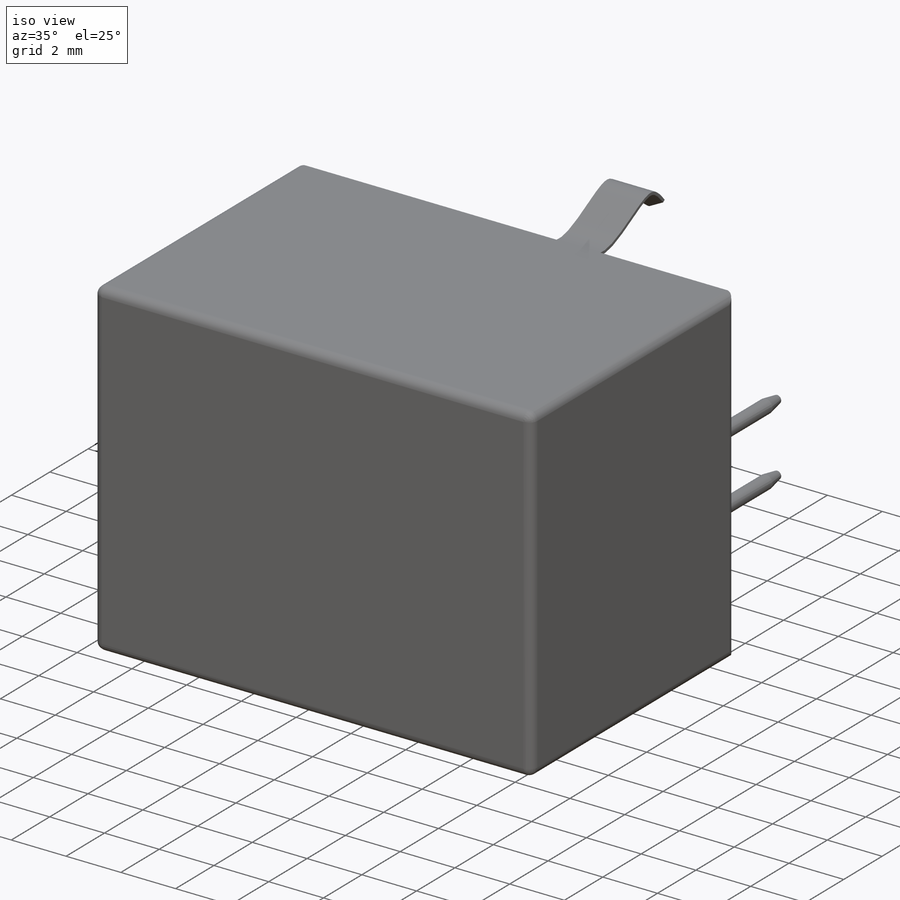
[diagram: iso view]
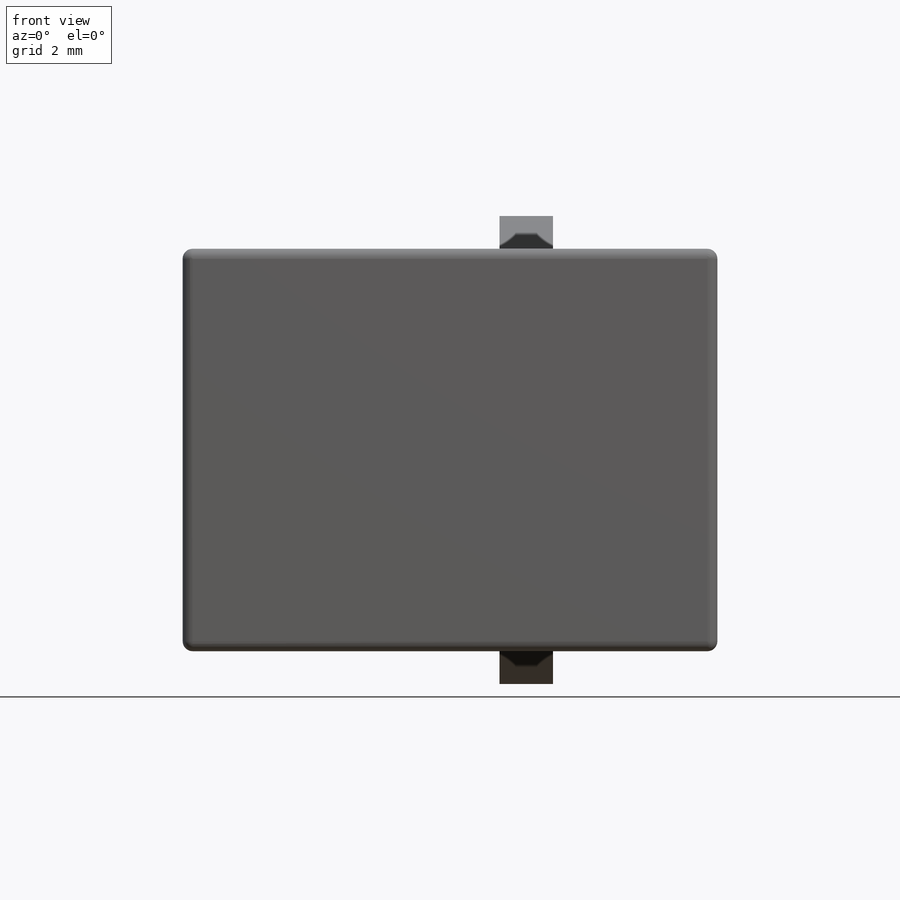
[diagram: front view]
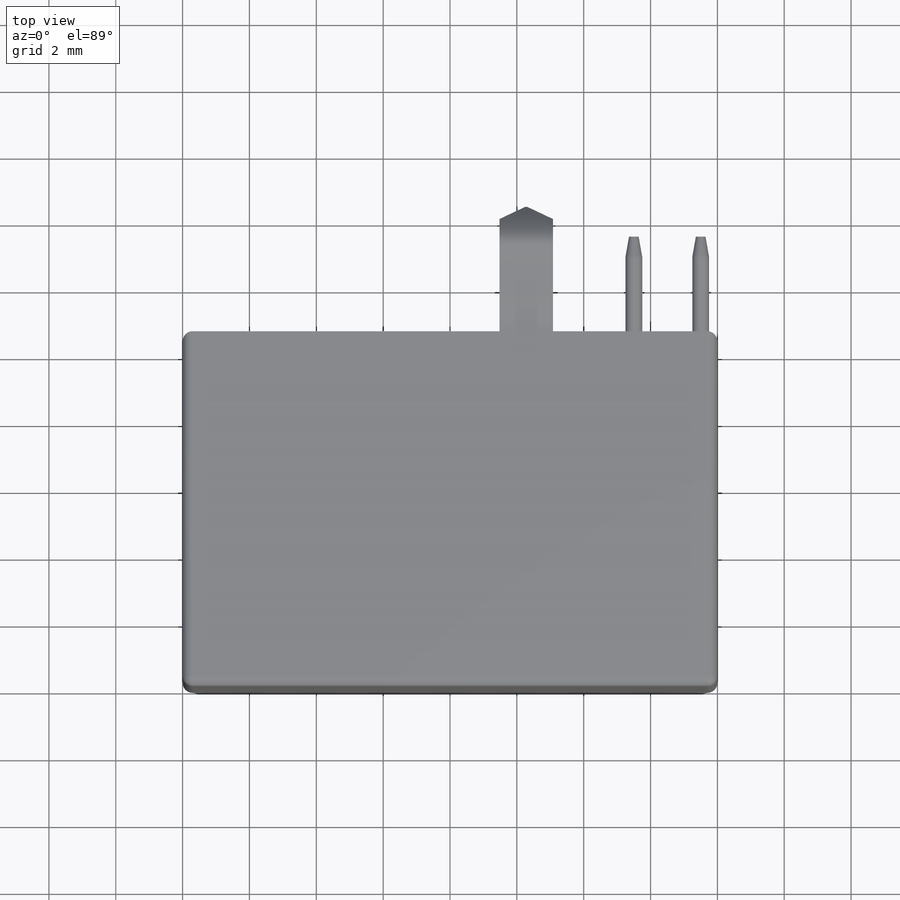
[diagram: top view]
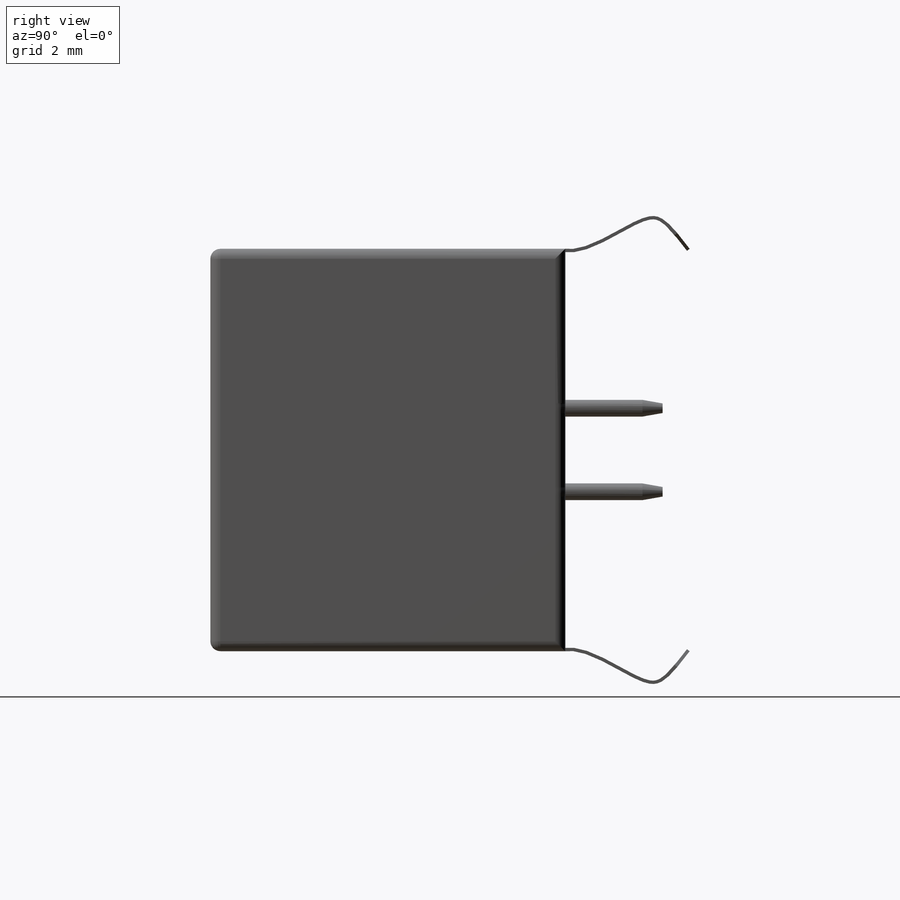
[diagram: right view]
SOLIDWORKS PART (.sldprt)
format: sldprt  version: not decoded by parser v0  size: 361,984 bytes
history: native  units: mm
features: sketch x7, extrude x3, chamfer x3, cut_extrude x2, plane x2, mirror x2, material x1, fillet x1 (+13 scaffold rows collapsed)
feature tree (34):
  scaffold x13  (default folders/planes/origin — collapsed)
  material  "Material <not specified>"
  sketch  "Sketch1"  dims[D1=12.04mm D2=10.62mm]
  extrude  "Boss-Extrude1"  Depth=16mm
  sketch  "Sketch2"  dims[c1.D1=7.78mm c1.D2=8.45mm c1.D3=1.5mm c1.D4=7.78mm c2.D4=45.0deg c2.D5=3.0mm]
  cut_extrude  "Cut-Extrude1"  Depth=9mm
  sketch  "Sketch3"  dims[D1=5.5mm D2=3.0mm D3=2.3mm]
  extrude  "Boss-Extrude2"  Depth=9mm
  plane  "Plane1"  Offset=6.02mm
  sketch  "Sketch4"  dims[c1.D1=4.0mm c1.D2=4.0mm c2.D1=4.0mm c2.D5=0.1mm c2.D6=10.0mm c2.D7=5.0mm]
  sketch  "Sketch5"  dims[D1=2.0mm]
  cut_extrude  "Cut-Extrude2"  Depth=9mm
  sketch  "Sketch6"  dims[D1=0.5mm D2=2.0mm D3=13.5mm D4=1.25mm]
  extrude  "Boss-Extrude4"  Depth=2.91mm
  mirror  "Mirror1"
  chamfer  "Chamfer1"  Distance=0.6mm Angle=10deg
  plane  "Plane2"  Offset=10.28mm
  sketch  "Sketch7"  dims[c1.D1=3.72mm c1.D2=14.883mm c2.D2=~2.726311deg c3.D2=7.0mm c3.D1=1.6mm c3.D5=0.1mm c3.D6=1.0mm c3.D7=5.0mm]
  chamfer  "Chamfer2"  Distance=0.6mm Angle=52deg
  mirror  "Mirror2"
  chamfer  "Chamfer3"  Distance=0.5mm Angle=52deg
  fillet  "Fillet1"  Radius=0.3mm
decode coverage: 16 of 18 modeling features carry decoded parameters
note: ~ marks probable driven/reference dimensions
note: suppression state not decoded; provenance and decode notes live in map.json
